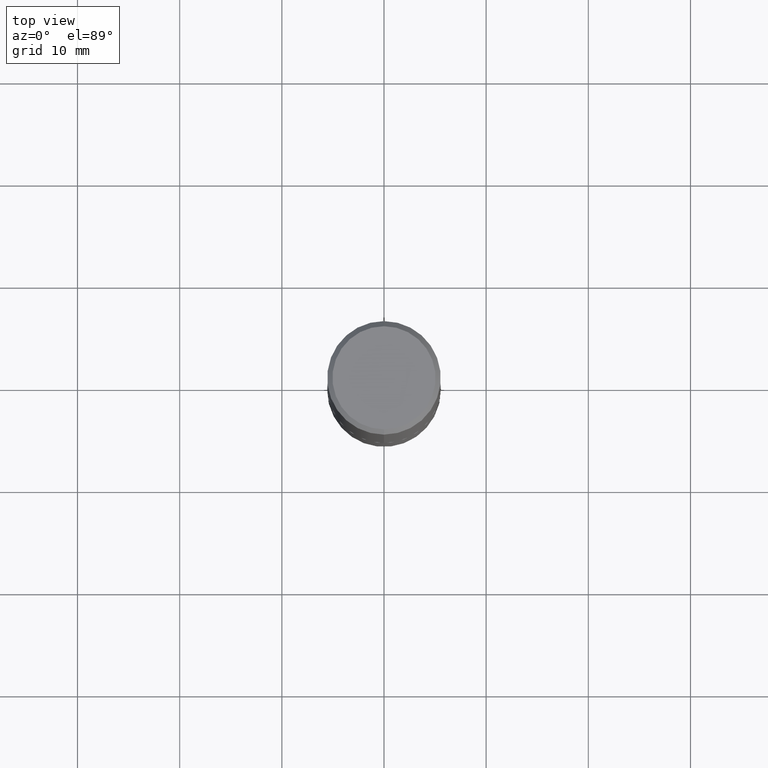
[diagram: clean part render]
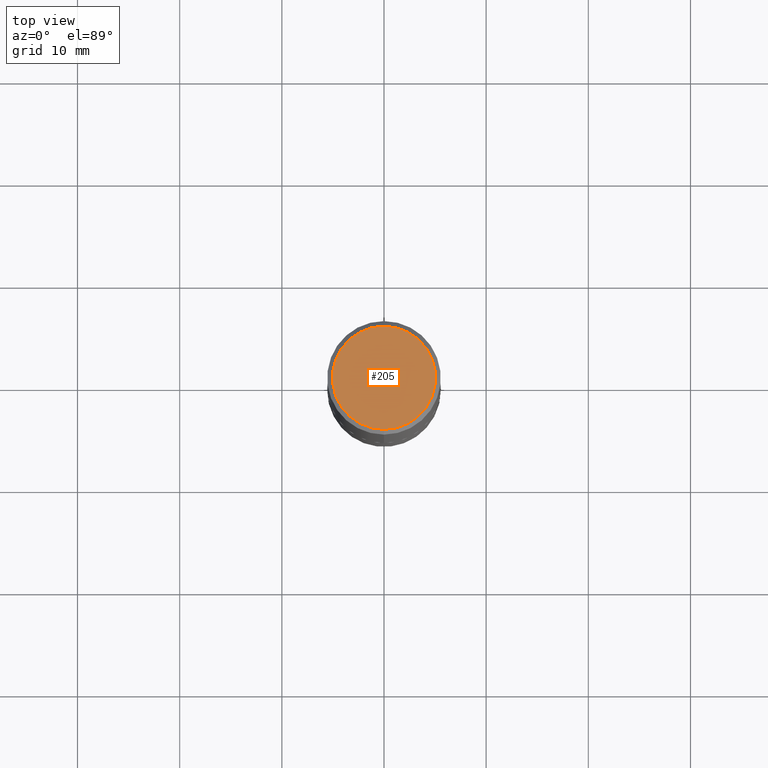
[diagram: same view with one face highlighted and labeled with its STEP entity id]
A machine part, top view. The second image highlights one B-rep face of the part: STEP entity #205.
In plain terms, the highlighted planar face has unit normal (0, -0, -1).
Its self-contained STEP definition (entity closure, byte-faithful):
#20 = PLANE ( 'NONE',  #244 ) ;
#37 = VERTEX_POINT ( 'NONE', #198 ) ;
#71 = FACE_OUTER_BOUND ( 'NONE', #153, .T. ) ;
#87 = DIRECTION ( 'NONE',  ( 2.445032622590503976E-29, -3.492105978576687648E-15, -1.000000000000000000 ) ) ;
#153 = EDGE_LOOP ( 'NONE', ( #318, #361 ) ) ;
#177 = CARTESIAN_POINT ( 'NONE',  ( 1.457693458967008925E-15, 0.1987500000000002320, -9.585796904813013388E-16 ) ) ;
#198 = CARTESIAN_POINT ( 'NONE',  ( -1.432128957034807395E-15, -0.1987500000000002320, 4.295324360029333057E-16 ) ) ;
#199 = DIRECTION ( 'NONE',  ( -2.445032622590504256E-29, 3.492105978576687648E-15, 1.000000000000000000 ) ) ;
#205 = ADVANCED_FACE ( 'NONE', ( #71 ), #20, .F. ) ;
#210 = CARTESIAN_POINT ( 'NONE',  ( 6.467688980457750273E-45, -9.237445401567455569E-31, -2.645236272391840412E-16 ) ) ;
#218 = AXIS2_PLACEMENT_3D ( 'NONE', #210, #373, #338 ) ;
#221 = VERTEX_POINT ( 'NONE', #177 ) ;
#240 = CARTESIAN_POINT ( 'NONE',  ( 1.387863832190147008E-15, 0.1987500000000002320, -8.263178768617095401E-16 ) ) ;
#243 = EDGE_CURVE ( 'NONE', #221, #37, #347, .T. ) ;
#244 = AXIS2_PLACEMENT_3D ( 'NONE', #240, #87, #271 ) ;
#250 = CIRCLE ( 'NONE', #218, 0.1987500000000002320 ) ;
#271 = DIRECTION ( 'NONE',  ( 6.982962677686265922E-15, 1.000000000000000000, -3.492105978576687648E-15 ) ) ;
#274 = AXIS2_PLACEMENT_3D ( 'NONE', #402, #199, #367 ) ;
#284 = EDGE_CURVE ( 'NONE', #37, #221, #250, .T. ) ;
#318 = ORIENTED_EDGE ( 'NONE', *, *, #243, .T. ) ;
#338 = DIRECTION ( 'NONE',  ( -6.982962677686265922E-15, -1.000000000000000000, 3.492105978576687648E-15 ) ) ;
#347 = CIRCLE ( 'NONE', #274, 0.1987500000000002320 ) ;
#361 = ORIENTED_EDGE ( 'NONE', *, *, #284, .T. ) ;
#367 = DIRECTION ( 'NONE',  ( -6.982962677686265922E-15, -1.000000000000000000, 3.492105978576687648E-15 ) ) ;
#373 = DIRECTION ( 'NONE',  ( -2.445032622590504256E-29, 3.492105978576687648E-15, 1.000000000000000000 ) ) ;
#402 = CARTESIAN_POINT ( 'NONE',  ( 6.467688980457750273E-45, -9.237445401567455569E-31, -2.645236272391840412E-16 ) ) ;